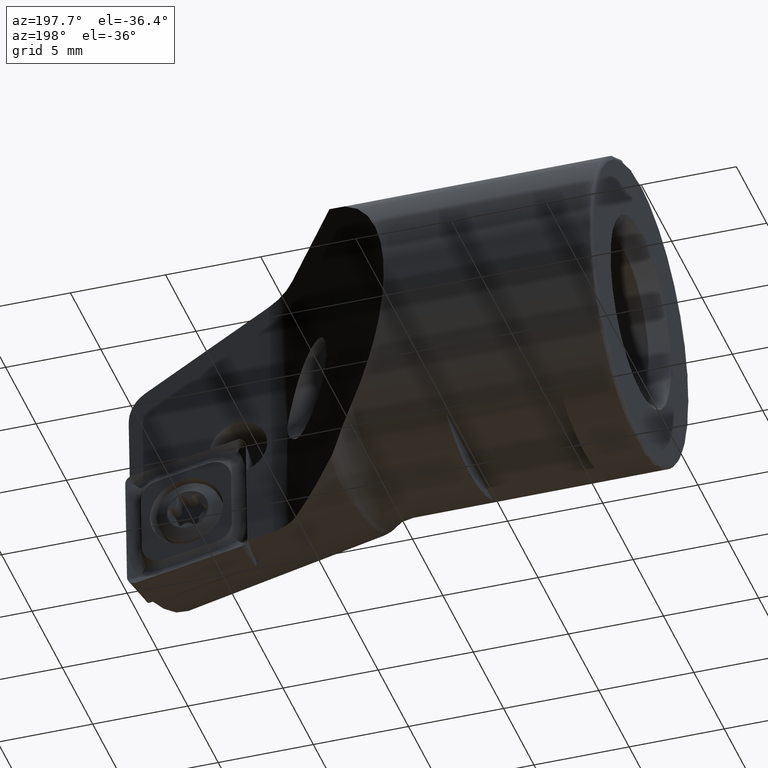
[diagram: clean part render]
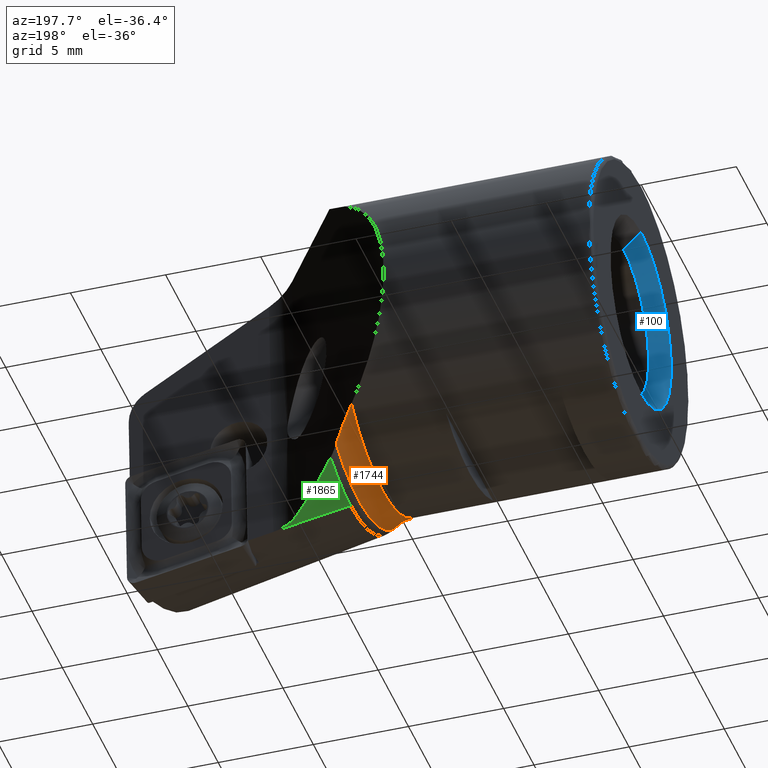
[diagram: same view with three faces highlighted in distinct colors, each labeled with its STEP entity id]
A machine part, auxiliary view with three faces highlighted in distinct colors.
Their STEP definitions:

[orange] entity #1744 — the highlighted toroidal blend (fillet) surface has major radius 10 mm and minor (blend) radius 2 mm.
#155 = CIRCLE ( 'NONE', #2784, 8.412319366756245000 ) ;
#676 = CARTESIAN_POINT ( 'NONE',  ( -12.54206058266114700, -7.999999999999994700, 9.161272387099815600 ) ) ;
#729 = AXIS2_PLACEMENT_3D ( 'NONE', #4143, #4531, #4557 ) ;
#745 = B_SPLINE_CURVE_WITH_KNOTS ( 'NONE', 3,
 ( #3550, #3558, #3180, #3205, #3215, #3472 ),
 .UNSPECIFIED., .F., .F.,
 ( 4, 2, 4 ),
 ( 3.338534271826002200E-007, 0.001104553397788227100, 0.002208772942149271700 ),
 .UNSPECIFIED. ) ;
#891 = FACE_OUTER_BOUND ( 'NONE', #4507, .T. ) ;
#996 = DIRECTION ( 'NONE',  ( 0.0000000000000000000, 0.0000000000000000000, 1.000000000000000000 ) ) ;
#1364 = AXIS2_PLACEMENT_3D ( 'NONE', #2992, #2984, #2972 ) ;
#1460 = CARTESIAN_POINT ( 'NONE',  ( -13.40000000000000000, 0.0000000000000000000, 10.87500000000000000 ) ) ;
#1623 = EDGE_CURVE ( 'NONE', #2814, #3938, #3330, .T. ) ;
#1744 = ADVANCED_FACE ( 'NONE', ( #891 ), #1897, .F. ) ;
#1804 = CARTESIAN_POINT ( 'NONE',  ( -12.18374747406781800, -7.999999999999992900, 8.273631681523172100 ) ) ;
#1807 = DIRECTION ( 'NONE',  ( -1.000000000000000000, -0.0000000000000000000, -0.0000000000000000000 ) ) ;
#1897 = TOROIDAL_SURFACE ( 'NONE', #729, 10.00000000000000000, 1.999999999999998700 ) ;
#2022 = ORIENTED_EDGE ( 'NONE', *, *, #4311, .F. ) ;
#2231 = B_SPLINE_CURVE_WITH_KNOTS ( 'NONE', 3,
 ( #4589, #4594, #676, #4583 ),
 .UNSPECIFIED., .F., .F.,
 ( 4, 4 ),
 ( -1.788854382000653600E-005, 0.002852764771483628100 ),
 .UNSPECIFIED. ) ;
#2617 = CARTESIAN_POINT ( 'NONE',  ( -13.40000000000000700, -7.999999999999996400, 10.87499999999999800 ) ) ;
#2724 = ORIENTED_EDGE ( 'NONE', *, *, #2956, .T. ) ;
#2784 = AXIS2_PLACEMENT_3D ( 'NONE', #3475, #3465, #3460 ) ;
#2814 = VERTEX_POINT ( 'NONE', #4060 ) ;
#2952 = CIRCLE ( 'NONE', #1364, 8.000000000000003600 ) ;
#2956 = EDGE_CURVE ( 'NONE', #4373, #3427, #155, .T. ) ;
#2972 = DIRECTION ( 'NONE',  ( 0.0000000000000000000, 0.0000000000000000000, 1.000000000000000000 ) ) ;
#2984 = DIRECTION ( 'NONE',  ( -1.000000000000000000, -0.0000000000000000000, -0.0000000000000000000 ) ) ;
#2992 = CARTESIAN_POINT ( 'NONE',  ( -13.40000000000000000, 0.0000000000000000000, 10.87500000000000000 ) ) ;
#3180 = CARTESIAN_POINT ( 'NONE',  ( -12.96844748351621800, 4.598687280317276000, 4.278845210532981700 ) ) ;
#3205 = CARTESIAN_POINT ( 'NONE',  ( -12.56210262649996400, 4.168820011332824600, 3.840651367098564300 ) ) ;
#3215 = CARTESIAN_POINT ( 'NONE',  ( -12.36686820908359700, 3.961083948324805700, 3.607218151884857600 ) ) ;
#3255 = VERTEX_POINT ( 'NONE', #2617 ) ;
#3330 = CIRCLE ( 'NONE', #3689, 8.000000000000003600 ) ;
#3363 = ORIENTED_EDGE ( 'NONE', *, *, #1623, .F. ) ;
#3427 = VERTEX_POINT ( 'NONE', #1804 ) ;
#3460 = DIRECTION ( 'NONE',  ( 0.0000000000000000000, 0.0000000000000000000, 1.000000000000000000 ) ) ;
#3465 = DIRECTION ( 'NONE',  ( -1.000000000000000000, -0.0000000000000000000, -0.0000000000000000000 ) ) ;
#3472 = CARTESIAN_POINT ( 'NONE',  ( -12.18374747407346000, 3.764331630999178600, 3.351907251657650500 ) ) ;
#3475 = CARTESIAN_POINT ( 'NONE',  ( -12.18374747407346000, 0.0000000000000000000, 10.87500000000000000 ) ) ;
#3550 = CARTESIAN_POINT ( 'NONE',  ( -13.40000000000000000, 5.051410895667328500, 4.671513241479963200 ) ) ;
#3552 = ORIENTED_EDGE ( 'NONE', *, *, #4699, .F. ) ;
#3558 = CARTESIAN_POINT ( 'NONE',  ( -13.17950317906560900, 4.820768848643654200, 4.483704708201697600 ) ) ;
#3689 = AXIS2_PLACEMENT_3D ( 'NONE', #1460, #1807, #996 ) ;
#3938 = VERTEX_POINT ( 'NONE', #3960 ) ;
#3960 = CARTESIAN_POINT ( 'NONE',  ( -13.40000000000000000, 9.797174393178827600E-016, 2.874999999999997300 ) ) ;
#4060 = CARTESIAN_POINT ( 'NONE',  ( -13.40000000000000000, 5.051410895667328500, 4.671513241479963200 ) ) ;
#4143 = CARTESIAN_POINT ( 'NONE',  ( -13.40000000000000200, 0.0000000000000000000, 10.87500000000000000 ) ) ;
#4250 = CARTESIAN_POINT ( 'NONE',  ( -12.18374747407346000, 3.764331630999178600, 3.351907251657650500 ) ) ;
#4311 = EDGE_CURVE ( 'NONE', #3255, #3427, #2231, .T. ) ;
#4373 = VERTEX_POINT ( 'NONE', #4250 ) ;
#4507 = EDGE_LOOP ( 'NONE', ( #2022, #3552, #3363, #4651, #2724 ) ) ;
#4531 = DIRECTION ( 'NONE',  ( -1.000000000000000000, -0.0000000000000000000, -0.0000000000000000000 ) ) ;
#4549 = EDGE_CURVE ( 'NONE', #2814, #4373, #745, .T. ) ;
#4557 = DIRECTION ( 'NONE',  ( 0.0000000000000000000, 0.0000000000000000000, 1.000000000000000000 ) ) ;
#4583 = CARTESIAN_POINT ( 'NONE',  ( -12.18374747406781800, -7.999999999999992900, 8.273631681523172100 ) ) ;
#4589 = CARTESIAN_POINT ( 'NONE',  ( -13.40000000000000700, -7.999999999999996400, 10.87499999999999800 ) ) ;
#4594 = CARTESIAN_POINT ( 'NONE',  ( -12.97206912572566900, -7.999999999999998200, 10.01913611166202500 ) ) ;
#4651 = ORIENTED_EDGE ( 'NONE', *, *, #4549, .T. ) ;
#4699 = EDGE_CURVE ( 'NONE', #3938, #3255, #2952, .T. ) ;

[blue] entity #100 — the highlighted conical surface has half-angle 45 deg.
#36 = EDGE_CURVE ( 'NONE', #1116, #2122, #1034, .T. ) ;
#100 = ADVANCED_FACE ( 'NONE', ( #2384 ), #790, .F. ) ;
#116 = VECTOR ( 'NONE', #3775, 1000.000000000000000 ) ;
#289 = EDGE_CURVE ( 'NONE', #2122, #3753, #521, .T. ) ;
#292 = LINE ( 'NONE', #3764, #116 ) ;
#392 = CARTESIAN_POINT ( 'NONE',  ( -27.00000000000000000, 0.0000000000000000000, 15.87500000000000000 ) ) ;
#460 = EDGE_CURVE ( 'NONE', #1563, #3753, #292, .T. ) ;
#502 = CARTESIAN_POINT ( 'NONE',  ( -27.00000000000000000, 6.123233995736766300E-016, 5.874999999999999100 ) ) ;
#521 = CIRCLE ( 'NONE', #2549, 5.000000000000000900 ) ;
#522 = EDGE_CURVE ( 'NONE', #1116, #1563, #4029, .T. ) ;
#790 = CONICAL_SURFACE ( 'NONE', #1849, 5.000000000000000900, 0.7853981633974479500 ) ;
#970 = EDGE_LOOP ( 'NONE', ( #2019, #3487, #4259, #4131 ) ) ;
#1034 = LINE ( 'NONE', #4264, #2274 ) ;
#1078 = DIRECTION ( 'NONE',  ( -1.000000000000000000, -0.0000000000000000000, -0.0000000000000000000 ) ) ;
#1116 = VERTEX_POINT ( 'NONE', #2225 ) ;
#1141 = AXIS2_PLACEMENT_3D ( 'NONE', #1172, #3161, #3295 ) ;
#1172 = CARTESIAN_POINT ( 'NONE',  ( -26.09999999999999800, 0.0000000000000000000, 10.87500000000000000 ) ) ;
#1563 = VERTEX_POINT ( 'NONE', #1901 ) ;
#1849 = AXIS2_PLACEMENT_3D ( 'NONE', #3071, #1078, #3104 ) ;
#1901 = CARTESIAN_POINT ( 'NONE',  ( -26.09999999999999800, 0.0000000000000000000, 14.97499999999999800 ) ) ;
#2019 = ORIENTED_EDGE ( 'NONE', *, *, #522, .F. ) ;
#2122 = VERTEX_POINT ( 'NONE', #502 ) ;
#2225 = CARTESIAN_POINT ( 'NONE',  ( -26.09999999999999800, 5.021051876504147400E-016, 6.774999999999999500 ) ) ;
#2274 = VECTOR ( 'NONE', #4581, 1000.000000000000000 ) ;
#2384 = FACE_OUTER_BOUND ( 'NONE', #970, .T. ) ;
#2549 = AXIS2_PLACEMENT_3D ( 'NONE', #4231, #4291, #4241 ) ;
#3071 = CARTESIAN_POINT ( 'NONE',  ( -27.00000000000000000, 0.0000000000000000000, 10.87500000000000000 ) ) ;
#3104 = DIRECTION ( 'NONE',  ( 0.0000000000000000000, 0.0000000000000000000, 1.000000000000000000 ) ) ;
#3161 = DIRECTION ( 'NONE',  ( -1.000000000000000000, -0.0000000000000000000, -0.0000000000000000000 ) ) ;
#3295 = DIRECTION ( 'NONE',  ( 0.0000000000000000000, 0.0000000000000000000, 1.000000000000000000 ) ) ;
#3487 = ORIENTED_EDGE ( 'NONE', *, *, #36, .T. ) ;
#3753 = VERTEX_POINT ( 'NONE', #392 ) ;
#3764 = CARTESIAN_POINT ( 'NONE',  ( -27.00000000000000000, 0.0000000000000000000, 15.87500000000000000 ) ) ;
#3775 = DIRECTION ( 'NONE',  ( -0.7071067811865479100, 0.0000000000000000000, 0.7071067811865472400 ) ) ;
#4029 = CIRCLE ( 'NONE', #1141, 4.099999999999999600 ) ;
#4131 = ORIENTED_EDGE ( 'NONE', *, *, #460, .F. ) ;
#4231 = CARTESIAN_POINT ( 'NONE',  ( -27.00000000000000000, 0.0000000000000000000, 10.87500000000000000 ) ) ;
#4241 = DIRECTION ( 'NONE',  ( 0.0000000000000000000, 0.0000000000000000000, 1.000000000000000000 ) ) ;
#4259 = ORIENTED_EDGE ( 'NONE', *, *, #289, .T. ) ;
#4264 = CARTESIAN_POINT ( 'NONE',  ( -27.00000000000000000, 6.123233995736766300E-016, 5.874999999999999100 ) ) ;
#4291 = DIRECTION ( 'NONE',  ( -1.000000000000000000, -0.0000000000000000000, -0.0000000000000000000 ) ) ;
#4581 = DIRECTION ( 'NONE',  ( -0.7071067811865479100, 8.659560562354929200E-017, -0.7071067811865472400 ) ) ;

[green] entity #1865 — the highlighted conical surface has half-angle 10 deg.
#44 = VECTOR ( 'NONE', #987, 999.9999999999998900 ) ;
#130 = FACE_OUTER_BOUND ( 'NONE', #2911, .T. ) ;
#294 = CARTESIAN_POINT ( 'NONE',  ( -11.74926938877711400, 0.0000000000000000000, 2.271713196853423900 ) ) ;
#397 = CARTESIAN_POINT ( 'NONE',  ( -11.74926938877711400, 0.0000000000000000000, 10.87500000000000000 ) ) ;
#477 = EDGE_CURVE ( 'NONE', #4069, #3831, #4502, .T. ) ;
#555 = CARTESIAN_POINT ( 'NONE',  ( 0.0000000000000000000, 0.0000000000000000000, 0.2000000000000005100 ) ) ;
#563 = EDGE_CURVE ( 'NONE', #4069, #1921, #797, .T. ) ;
#614 = DIRECTION ( 'NONE',  ( 0.0000000000000000000, 0.0000000000000000000, 1.000000000000000000 ) ) ;
#797 =( BOUNDED_CURVE ( )  B_SPLINE_CURVE ( 3, ( #3226, #1051, #3782, #3223 ),
 .UNSPECIFIED., .F., .F. ) 
 B_SPLINE_CURVE_WITH_KNOTS ( ( 4, 4 ),
 ( 4.111417563665095400, 4.421585657352674800 ),
 .UNSPECIFIED. ) 
 CURVE ( )  GEOMETRIC_REPRESENTATION_ITEM ( )  RATIONAL_B_SPLINE_CURVE ( ( 1.000000000000000000, 0.9919990347497149600, 0.9919990347497149600, 1.000000000000000000 ) ) 
 REPRESENTATION_ITEM ( '' )  );
#987 = DIRECTION ( 'NONE',  ( 0.9848077530122086900, 0.0000000000000000000, -0.1736481776669273600 ) ) ;
#1051 = CARTESIAN_POINT ( 'NONE',  ( -10.93110115075545400, 2.461350833113824500, 2.424269960709494900 ) ) ;
#1085 = AXIS2_PLACEMENT_3D ( 'NONE', #2309, #2141, #2257 ) ;
#1825 = CONICAL_SURFACE ( 'NONE', #1085, 10.67499999999999900, 0.1745329251994299200 ) ;
#1865 = ADVANCED_FACE ( 'NONE', ( #130 ), #1825, .T. ) ;
#1921 = VERTEX_POINT ( 'NONE', #3565 ) ;
#2083 = EDGE_CURVE ( 'NONE', #3831, #2456, #3193, .T. ) ;
#2111 = CARTESIAN_POINT ( 'NONE',  ( -7.927019775050994500, 1.182857505421475900E-015, 1.597747462951013100 ) ) ;
#2141 = DIRECTION ( 'NONE',  ( 1.000000000000000000, 0.0000000000000000000, 0.0000000000000000000 ) ) ;
#2257 = DIRECTION ( 'NONE',  ( 0.0000000000000000000, 0.0000000000000000000, -1.000000000000000000 ) ) ;
#2309 = CARTESIAN_POINT ( 'NONE',  ( 0.0000000000000000000, 0.0000000000000000000, 10.87500000000000000 ) ) ;
#2456 = VERTEX_POINT ( 'NONE', #2111 ) ;
#2508 = ORIENTED_EDGE ( 'NONE', *, *, #4347, .T. ) ;
#2588 = DIRECTION ( 'NONE',  ( -1.000000000000000000, -0.0000000000000000000, -0.0000000000000000000 ) ) ;
#2774 = CARTESIAN_POINT ( 'NONE',  ( -11.74926938877711400, 3.307293427542220800, 2.932811762408798400 ) ) ;
#2911 = EDGE_LOOP ( 'NONE', ( #4072, #4428, #4538, #2508 ) ) ;
#3193 = LINE ( 'NONE', #555, #44 ) ;
#3223 = CARTESIAN_POINT ( 'NONE',  ( -9.085786437626906000, 0.5818744219118977500, 1.820747196634966200 ) ) ;
#3226 = CARTESIAN_POINT ( 'NONE',  ( -11.74926938877711400, 3.307293427542220800, 2.932811762408798400 ) ) ;
#3565 = CARTESIAN_POINT ( 'NONE',  ( -9.085786437626906000, 0.5818744219118977500, 1.820747196634966200 ) ) ;
#3782 = CARTESIAN_POINT ( 'NONE',  ( -10.03611272911106200, 1.545550544955291100, 2.050591987640899600 ) ) ;
#3831 = VERTEX_POINT ( 'NONE', #294 ) ;
#4069 = VERTEX_POINT ( 'NONE', #2774 ) ;
#4072 = ORIENTED_EDGE ( 'NONE', *, *, #2083, .F. ) ;
#4247 = AXIS2_PLACEMENT_3D ( 'NONE', #397, #2588, #614 ) ;
#4347 = EDGE_CURVE ( 'NONE', #1921, #2456, #4719, .T. ) ;
#4428 = ORIENTED_EDGE ( 'NONE', *, *, #477, .F. ) ;
#4490 = CARTESIAN_POINT ( 'NONE',  ( -7.927019775050994500, 1.182857505421475900E-015, 1.597747462951013100 ) ) ;
#4499 = CARTESIAN_POINT ( 'NONE',  ( -8.145922893236758000, 0.03025149150999116200, 1.636345988848357600 ) ) ;
#4502 = CIRCLE ( 'NONE', #4247, 8.603286803146575700 ) ;
#4511 = CARTESIAN_POINT ( 'NONE',  ( -8.356148216401402700, 0.09558793680762776900, 1.673364173221060200 ) ) ;
#4520 = CARTESIAN_POINT ( 'NONE',  ( -8.752447364577784900, 0.2946652675465226100, 1.747496879410276300 ) ) ;
#4538 = ORIENTED_EDGE ( 'NONE', *, *, #563, .T. ) ;
#4546 = CARTESIAN_POINT ( 'NONE',  ( -9.085786437626906000, 0.5818744219118977500, 1.820747196634966200 ) ) ;
#4577 = CARTESIAN_POINT ( 'NONE',  ( -8.929791769426604000, 0.4236883984231272200, 1.783018510991070300 ) ) ;
#4719 = B_SPLINE_CURVE_WITH_KNOTS ( 'NONE', 3,
 ( #4546, #4577, #4520, #4511, #4499, #4490 ),
 .UNSPECIFIED., .F., .F.,
 ( 4, 2, 4 ),
 ( 2.848488569930160500E-007, 0.0006667684140883057300, 0.001333251979319618600 ),
 .UNSPECIFIED. ) ;